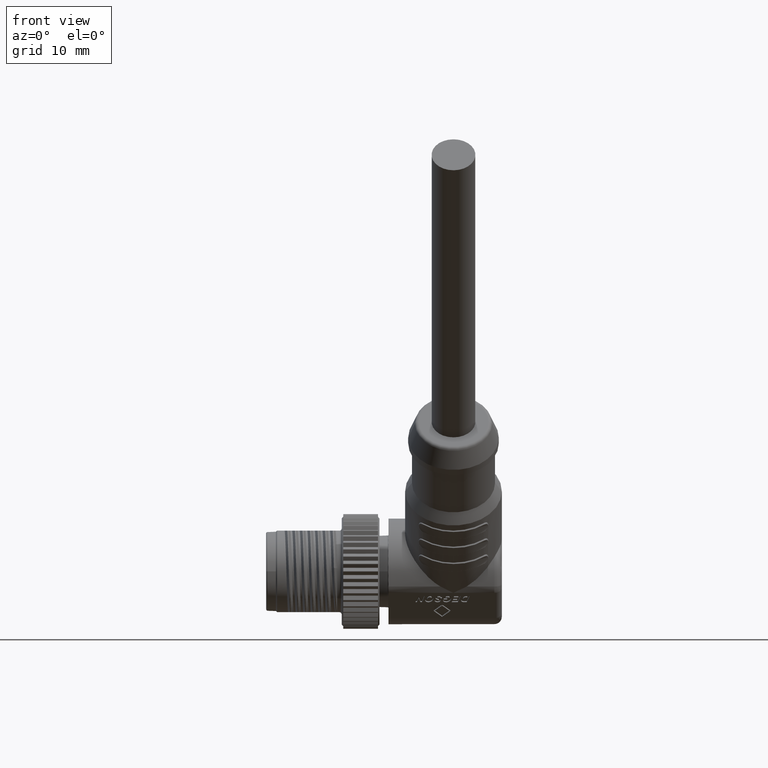
[diagram: clean part render]
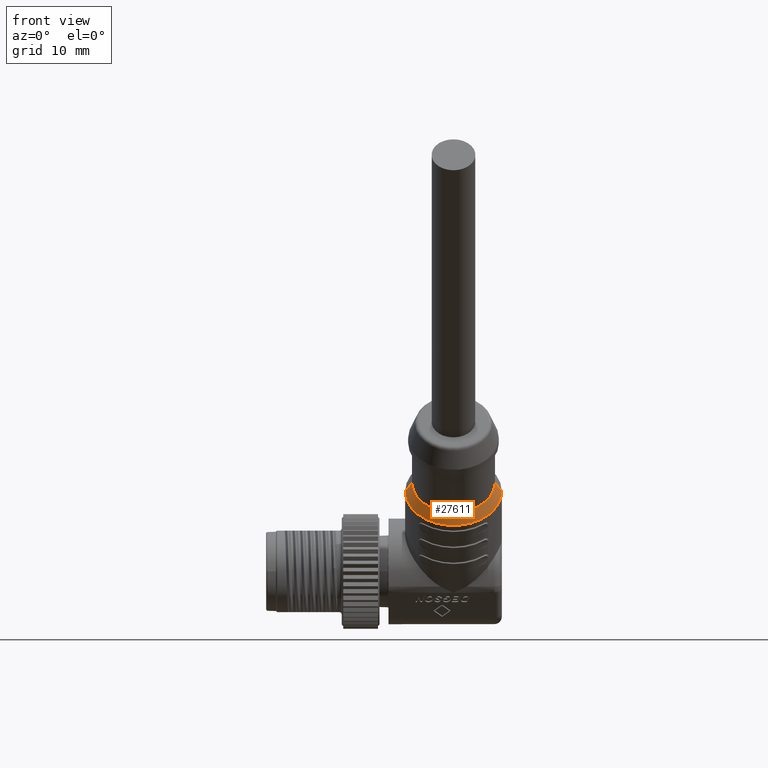
[diagram: same view with one face highlighted and labeled with its STEP entity id]
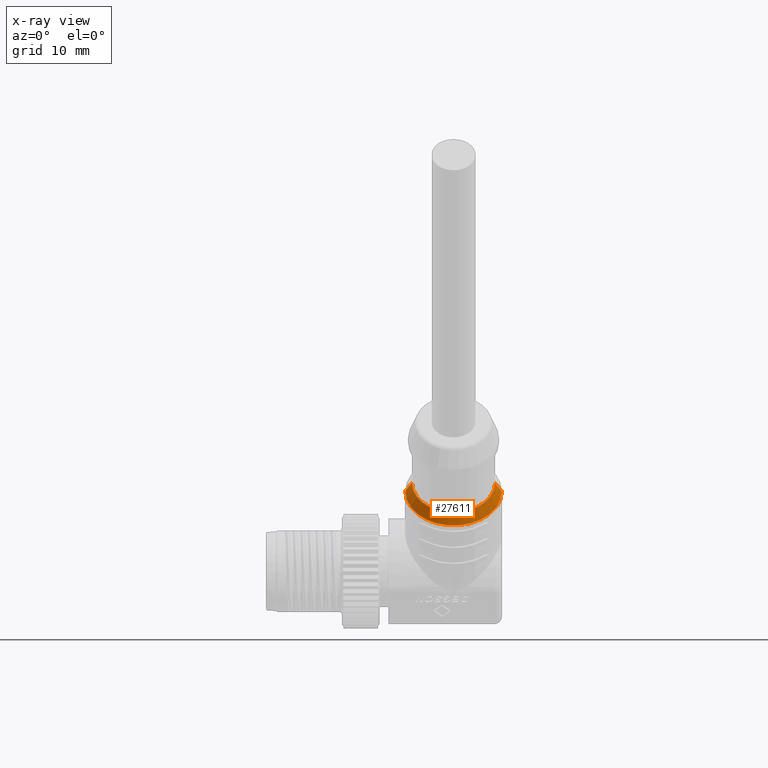
[diagram: x-ray of the same camera — body ghosted, the highlighted face saturated]
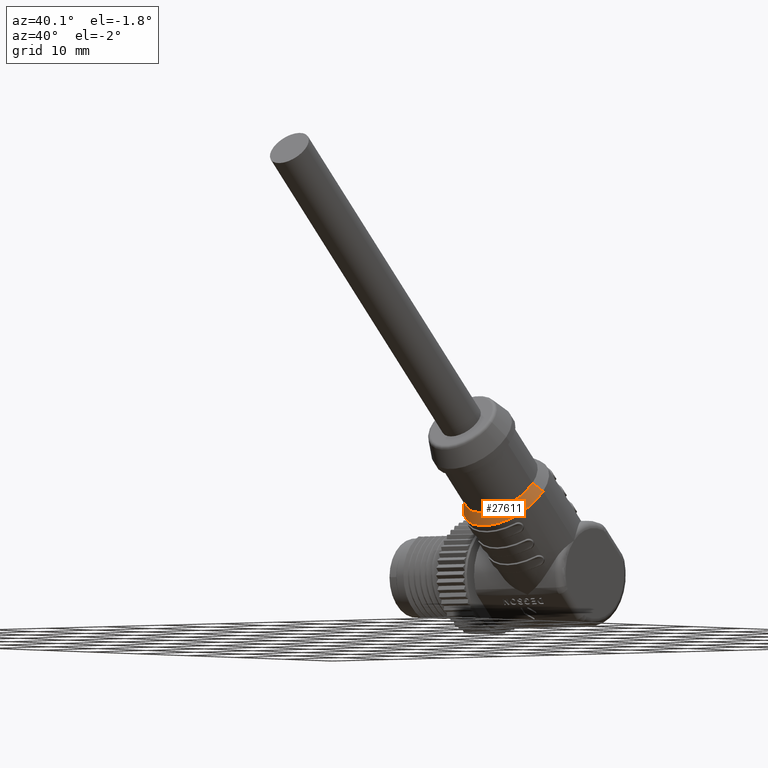
[diagram: same view with one face highlighted and labeled with its STEP entity id]
A machine part, front view. The second image highlights one B-rep face of the part: STEP entity #27611.
The next image is the same camera in x-ray: the body ghosted, the highlighted face saturated — about 0% of this face is hidden behind the body in this view.
A second angle (auxiliary view) of the same face is appended — the face is thin or edge-on in the first view.
In plain terms, the highlighted conical surface has half-angle 30 deg.
Its self-contained STEP definition (entity closure, byte-faithful):
#5892=CARTESIAN_POINT('',(2.28E1,-1.060660171780E1,1.060660171780E1));
#5893=DIRECTION('',(0.E0,7.071067811865E-1,-7.071067811865E-1));
#5894=DIRECTION('',(1.E0,0.E0,0.E0));
#5895=AXIS2_PLACEMENT_3D('',#5892,#5893,#5894);
#5897=DIRECTION('',(5.000000000004E-1,-6.123724356956E-1,6.123724356956E-1));
#5898=VECTOR('',#5897,1.799999999997E0);
#5899=CARTESIAN_POINT('',(1.64E1,-1.060660171780E1,1.060660171780E1));
#5900=LINE('',#5899,#5898);
#5901=CARTESIAN_POINT('',(2.28E1,-1.170887210205E1,1.170887210205E1));
#5902=DIRECTION('',(0.E0,-7.071067811865E-1,7.071067811865E-1));
#5903=DIRECTION('',(-1.E0,0.E0,0.E0));
#5904=AXIS2_PLACEMENT_3D('',#5901,#5902,#5903);
#5906=DIRECTION('',(-5.000000000004E-1,-6.123724356956E-1,6.123724356956E-1));
#5907=VECTOR('',#5906,1.799999999997E0);
#5908=CARTESIAN_POINT('',(2.92E1,-1.060660171780E1,1.060660171780E1));
#5909=LINE('',#5908,#5907);
#16674=CARTESIAN_POINT('',(1.64E1,-1.060660171780E1,1.060660171780E1));
#16675=VERTEX_POINT('',#16674);
#16676=CARTESIAN_POINT('',(2.92E1,-1.060660171780E1,1.060660171780E1));
#16677=VERTEX_POINT('',#16676);
#16726=CARTESIAN_POINT('',(2.83E1,-1.170887210205E1,1.170887210205E1));
#16727=VERTEX_POINT('',#16726);
#16728=CARTESIAN_POINT('',(1.73E1,-1.170887210205E1,1.170887210205E1));
#16729=VERTEX_POINT('',#16728);
#27597=CARTESIAN_POINT('',(2.28E1,-1.115773690992E1,1.115773690992E1));
#27598=DIRECTION('',(0.E0,7.071067811865E-1,-7.071067811865E-1));
#27599=DIRECTION('',(1.E0,0.E0,0.E0));
#27600=AXIS2_PLACEMENT_3D('',#27597,#27598,#27599);
#27601=CONICAL_SURFACE('',#27600,5.949999999997E0,3.E1);
#27603=ORIENTED_EDGE('',*,*,#27602,.F.);
#27604=ORIENTED_EDGE('',*,*,#27561,.T.);
#27606=ORIENTED_EDGE('',*,*,#27605,.T.);
#27608=ORIENTED_EDGE('',*,*,#27607,.T.);
#27609=EDGE_LOOP('',(#27603,#27604,#27606,#27608));
#27610=FACE_OUTER_BOUND('',#27609,.F.);
#27611=ADVANCED_FACE('',(#27610),#27601,.T.);
#5896=CIRCLE('',#5895,6.399999999996E0);
#5905=CIRCLE('',#5904,5.499999999998E0);
#27561=EDGE_CURVE('',#16677,#16675,#5896,.T.);
#27602=EDGE_CURVE('',#16677,#16727,#5909,.T.);
#27605=EDGE_CURVE('',#16675,#16729,#5900,.T.);
#27607=EDGE_CURVE('',#16729,#16727,#5905,.T.);